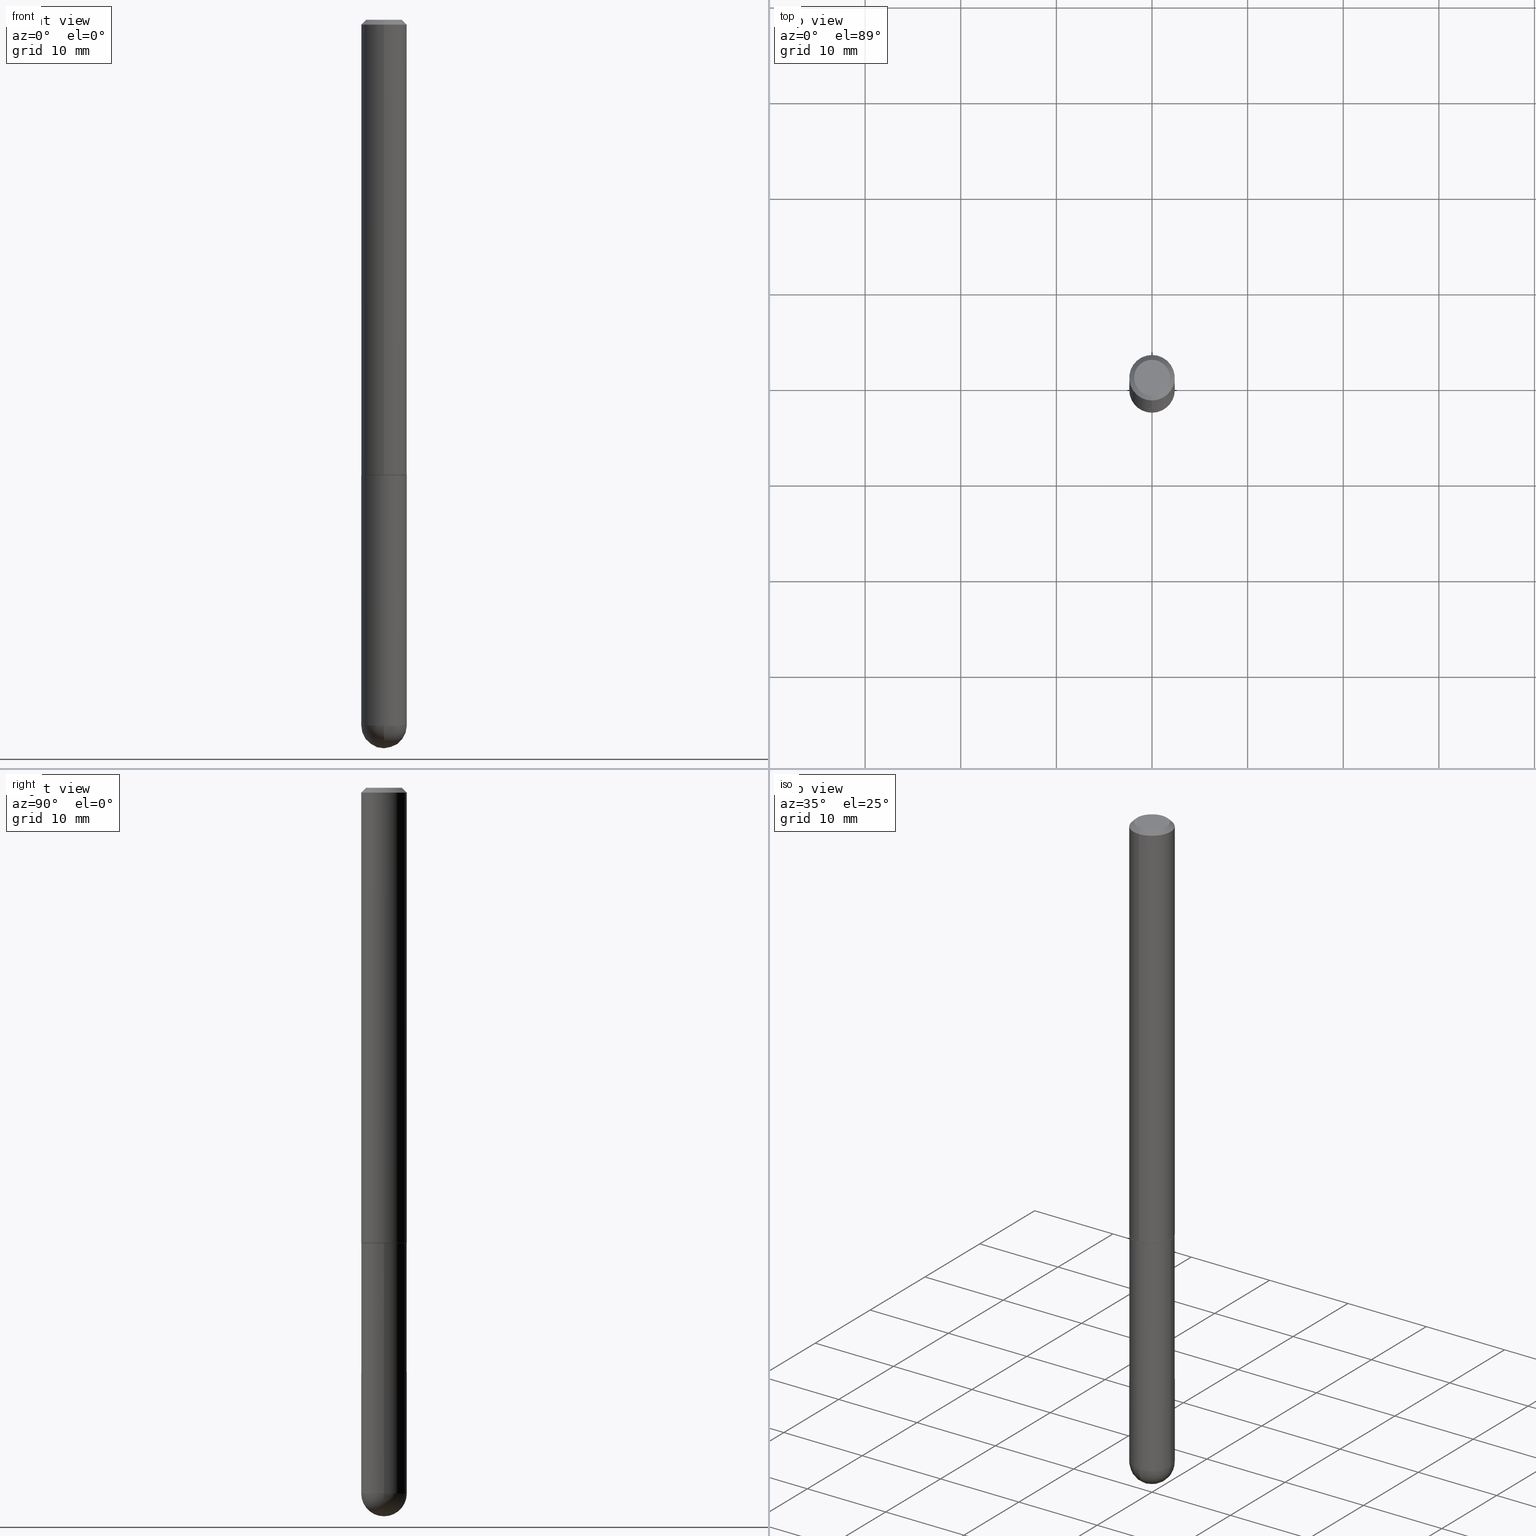
[diagram: canonical four-view strip — front | top / right | iso, engineering-drawing reading convention]
A machine part, canonical four-view strip (front | top / right | iso — engineering-drawing reading convention). The complete STEP part file that produces these views, byte-faithful:
ISO-10303-21;
HEADER;
FILE_DESCRIPTION (( 'STEP AP203' ),
    '1' );
FILE_NAME ('31989.STEP',
    '2024-02-21T17:30:06',
    ( '' ),
    ( '' ),
    'SwSTEP 2.0',
    'SolidWorks 2023',
    '' );
FILE_SCHEMA (( 'CONFIG_CONTROL_DESIGN' ));
ENDSEC;

DATA;
#1 = PERSON_AND_ORGANIZATION_ROLE ( 'design_supplier' ) ;
#2 = ADVANCED_FACE ( 'NONE', ( #400 ), #149, .T. ) ;
#3 = LENGTH_MEASURE_WITH_UNIT ( LENGTH_MEASURE( 0.02539999999999999897 ), #205 );
#4 = EDGE_LOOP ( 'NONE', ( #359, #80, #20, #229 ) ) ;
#5 = DIRECTION ( 'NONE',  ( 4.937700262164540942E-15, 0.7071067811865441310, -0.7071067811865509034 ) ) ;
#6 = ORIENTED_EDGE ( 'NONE', *, *, #130, .F. ) ;
#7 = MANIFOLD_SOLID_BREP ( 'Body-Move/Copy2[1]', #342 ) ;
#8 = DIRECTION ( 'NONE',  ( -2.444937418250420314E-29, 3.492242316610381935E-15, 1.000000000000000000 ) ) ;
#9 = CC_DESIGN_PERSON_AND_ORGANIZATION_ASSIGNMENT ( #90, #46, ( #234 ) ) ;
#10 = ORIENTED_EDGE ( 'NONE', *, *, #93, .T. ) ;
#11 = FACE_OUTER_BOUND ( 'NONE', #210, .T. ) ;
#12 = VERTEX_POINT ( 'NONE', #243 ) ;
#13 = DATE_AND_TIME ( #122, #165 ) ;
#14 = ORIENTED_EDGE ( 'NONE', *, *, #283, .T. ) ;
#15 = APPLICATION_PROTOCOL_DEFINITION ( 'international standard', 'config_control_design', 1994, #182 ) ;
#16 = FACE_OUTER_BOUND ( 'NONE', #286, .T. ) ;
#17 = AXIS2_PLACEMENT_3D ( 'NONE', #368, #153, #148 ) ;
#18 = CIRCLE ( 'NONE', #53, 0.09375000000000024980 ) ;
#19 = LINE ( 'NONE', #112, #249 ) ;
#20 = ORIENTED_EDGE ( 'NONE', *, *, #194, .F. ) ;
#21 = FACE_OUTER_BOUND ( 'NONE', #204, .T. ) ;
#22 = EDGE_CURVE ( 'NONE', #77, #136, #345, .T. ) ;
#23 = CIRCLE ( 'NONE', #382, 0.07375000000000025979 ) ;
#24 = CARTESIAN_POINT ( 'NONE',  ( 6.776023940061668108E-29, -1.062130000915294250E-14, -2.906250000000000000 ) ) ;
#25 = MECHANICAL_CONTEXT ( 'NONE', #182, 'mechanical' ) ;
#26 = COORDINATED_UNIVERSAL_TIME_OFFSET ( 5, 0, .BEHIND. ) ;
#27 = ADVANCED_FACE ( 'NONE', ( #58 ), #54, .T. ) ;
#28 = CARTESIAN_POINT ( 'NONE',  ( 4.277488671524006827E-45, -6.109778858146482464E-31, -1.749528899837831747E-16 ) ) ;
#29 = CALENDAR_DATE ( 2024, 21, 2 ) ;
#30 = PRODUCT_DEFINITION_FORMATION_WITH_SPECIFIED_SOURCE ( 'ANY', '', #181, .NOT_KNOWN. ) ;
#31 = CALENDAR_DATE ( 2024, 21, 2 ) ;
#32 = EDGE_CURVE ( 'NONE', #338, #239, #336, .T. ) ;
#33 = PERSON_AND_ORGANIZATION_ROLE ( 'creator' ) ;
#34 = DIRECTION ( 'NONE',  ( -6.982962677686266711E-15, -1.000000000000000000, 3.492242316610381935E-15 ) ) ;
#35 = VERTEX_POINT ( 'NONE', #305 ) ;
#36 = VECTOR ( 'NONE', #67, 39.37007874015748143 ) ;
#37 = SECURITY_CLASSIFICATION_LEVEL ( 'unclassified' ) ;
#38 = AXIS2_PLACEMENT_3D ( 'NONE', #71, #390, #43 ) ;
#39 = CARTESIAN_POINT ( 'NONE',  ( 4.581812721801287478E-29, -6.544462101327855902E-15, -1.874000000000000110 ) ) ;
#40 = EDGE_LOOP ( 'NONE', ( #193, #329 ) ) ;
#41 = ADVANCED_FACE ( 'NONE', ( #21 ), #272, .T. ) ;
#42 = ORIENTED_EDGE ( 'NONE', *, *, #312, .F. ) ;
#43 = DIRECTION ( 'NONE',  ( -6.982962677686266711E-15, -1.000000000000000000, 3.505871591869136121E-15 ) ) ;
#44 = ORIENTED_EDGE ( 'NONE', *, *, #365, .F. ) ;
#45 = APPROVAL_PERSON_ORGANIZATION ( #155, #215, #310 ) ;
#46 = PERSON_AND_ORGANIZATION_ROLE ( 'creator' ) ;
#47 = ORIENTED_EDGE ( 'NONE', *, *, #298, .F. ) ;
#48 = APPROVAL_DATE_TIME ( #57, #268 ) ;
#49 = DIRECTION ( 'NONE',  ( -2.444937418250420594E-29, 3.492242316610381935E-15, 1.000000000000000000 ) ) ;
#50 = CARTESIAN_POINT ( 'NONE',  ( 6.661338147750948117E-16, 0.09375000000000013878, -3.273977171822237748E-16 ) ) ;
#51 = VECTOR ( 'NONE', #49, 39.37007874015748143 ) ;
#52 = AXIS2_PLACEMENT_3D ( 'NONE', #124, #248, #156 ) ;
#53 = AXIS2_PLACEMENT_3D ( 'NONE', #39, #325, #228 ) ;
#54 = SPHERICAL_SURFACE ( 'NONE', #218, 0.09375000000000026368 ) ;
#55 = ADVANCED_FACE ( 'NONE', ( #16 ), #255, .T. ) ;
#56 = DIRECTION ( 'NONE',  ( -2.444937418250420594E-29, 3.492242316610381935E-15, 1.000000000000000000 ) ) ;
#57 = DATE_AND_TIME ( #187, #180 ) ;
#58 = FACE_OUTER_BOUND ( 'NONE', #103, .T. ) ;
#59 = AXIS2_PLACEMENT_3D ( 'NONE', #282, #221, #188 ) ;
#60 = DIRECTION ( 'NONE',  ( -2.445468806185136877E-29, 3.491481338843145188E-15, 1.000000000000000000 ) ) ;
#61 = APPLICATION_PROTOCOL_DEFINITION ( 'international standard', 'config_control_design', 1994, #356 ) ;
#62 = DIRECTION ( 'NONE',  ( -6.982962677686265922E-15, -1.000000000000000000, 2.945388672414299892E-15 ) ) ;
#63 = LINE ( 'NONE', #379, #207 ) ;
#64 = AXIS2_PLACEMENT_3D ( 'NONE', #381, #127, #94 ) ;
#65 = CC_DESIGN_APPROVAL ( #215, ( #30 ) ) ;
#66 = CC_DESIGN_PERSON_AND_ORGANIZATION_ASSIGNMENT ( #411, #1, ( #30 ) ) ;
#67 = DIRECTION ( 'NONE',  ( -4.851104656540957175E-15, -0.7071067811865490160, -0.7071067811865460184 ) ) ;
#68 = DATE_AND_TIME ( #29, #315 ) ;
#69 = PLANE ( 'NONE',  #106 ) ;
#70 = ORIENTED_EDGE ( 'NONE', *, *, #360, .F. ) ;
#71 = CARTESIAN_POINT ( 'NONE',  ( 4.889874836500844937E-31, -6.984484633220769491E-17, -0.02000000000000001776 ) ) ;
#72 = EDGE_LOOP ( 'NONE', ( #202, #297 ) ) ;
#73 = CONICAL_SURFACE ( 'NONE', #64, 0.09274999999999999911, 0.7853981633975336552 ) ;
#74 = EDGE_CURVE ( 'NONE', #239, #259, #270, .T. ) ;
#75 = VECTOR ( 'NONE', #197, 39.37007874015748143 ) ;
#76 = DIRECTION ( 'NONE',  ( 1.000000000000000000, -6.982962677686261189E-15, 0.000000000000000000 ) ) ;
#77 = VERTEX_POINT ( 'NONE', #364 ) ;
#78 = CARTESIAN_POINT ( 'NONE',  ( 0.000000000000000000, 0.000000000000000000, 0.000000000000000000 ) ) ;
#79 = ORIENTED_EDGE ( 'NONE', *, *, #166, .T. ) ;
#80 = ORIENTED_EDGE ( 'NONE', *, *, #111, .T. ) ;
#81 = AXIS2_PLACEMENT_3D ( 'NONE', #245, #56, #370 ) ;
#82 = CC_DESIGN_APPROVAL ( #268, ( #234 ) ) ;
#83 = COORDINATED_UNIVERSAL_TIME_OFFSET ( 5, 0, .BEHIND. ) ;
#84 = CARTESIAN_POINT ( 'NONE',  ( 0.000000000000000000, 0.000000000000000000, 0.000000000000000000 ) ) ;
#85 = LOCAL_TIME ( 12, 30, 6.000000000000000000, #409 ) ;
#86 = FACE_OUTER_BOUND ( 'NONE', #72, .T. ) ;
#87 = DATE_AND_TIME ( #371, #212 ) ;
#88 = DIRECTION ( 'NONE',  ( -6.982962677686265133E-15, -1.000000000000000000, 3.492242316610381541E-15 ) ) ;
#89 = CIRCLE ( 'NONE', #302, 0.09374999999999998612 ) ;
#90 = PERSON_AND_ORGANIZATION ( #183, #389 ) ;
#91 = FACE_OUTER_BOUND ( 'NONE', #386, .T. ) ;
#92 = DIRECTION ( 'NONE',  ( 6.982962677686266711E-15, 1.000000000000000000, -3.505871591869136121E-15 ) ) ;
#93 = EDGE_CURVE ( 'NONE', #144, #322, #293, .T. ) ;
#94 = DIRECTION ( 'NONE',  ( -6.982962677686265922E-15, -1.000000000000000000, 2.945388672414299892E-15 ) ) ;
#95 = ORIENTED_EDGE ( 'NONE', *, *, #298, .T. ) ;
#96 = DIRECTION ( 'NONE',  ( -2.444937418250420594E-29, 3.492242316610381935E-15, 1.000000000000000000 ) ) ;
#97 = ORIENTED_EDGE ( 'NONE', *, *, #32, .T. ) ;
#98 = CARTESIAN_POINT ( 'NONE',  ( 7.107143717975553234E-29, -1.014711764101289221E-14, -2.906250000000000000 ) ) ;
#99 = ADVANCED_FACE ( 'NONE', ( #86 ), #396, .F. ) ;
#100 = ORIENTED_EDGE ( 'NONE', *, *, #365, .T. ) ;
#101 = DIMENSIONAL_EXPONENTS ( 1.000000000000000000, 0.000000000000000000, 0.000000000000000000, 0.000000000000000000, 0.000000000000000000, 0.000000000000000000, 0.000000000000000000 ) ;
#102 = DIRECTION ( 'NONE',  ( 6.982962677686265133E-15, 1.000000000000000000, 0.000000000000000000 ) ) ;
#103 = EDGE_LOOP ( 'NONE', ( #70, #252, #304, #264 ) ) ;
#104 = CLOSED_SHELL ( 'NONE', ( #224, #378, #55, #189, #316, #171, #277, #247 ) ) ;
#105 = AXIS2_PLACEMENT_3D ( 'NONE', #147, #275, #330 ) ;
#106 = AXIS2_PLACEMENT_3D ( 'NONE', #139, #8, #327 ) ;
#107 = DIRECTION ( 'NONE',  ( 1.000000000000000000, -6.982962677686263555E-15, 0.000000000000000000 ) ) ;
#108 = ORIENTED_EDGE ( 'NONE', *, *, #372, .F. ) ;
#109 = CYLINDRICAL_SURFACE ( 'NONE', #334, 0.09375000000000013878 ) ;
#110 = ORIENTED_EDGE ( 'NONE', *, *, #177, .T. ) ;
#111 = EDGE_CURVE ( 'NONE', #259, #388, #113, .T. ) ;
#112 = CARTESIAN_POINT ( 'NONE',  ( -0.09374999999999998612, 6.661338147750938256E-16, -4.611501647113973295E-30 ) ) ;
#113 = LINE ( 'NONE', #50, #51 ) ;
#114 = CARTESIAN_POINT ( 'NONE',  ( -0.09375000000000001388, -7.680688760896801533E-15, -1.875000000000000000 ) ) ;
#115 = EDGE_CURVE ( 'NONE', #326, #136, #19, .T. ) ;
#116 = DIRECTION ( 'NONE',  ( -6.982962677686265133E-15, -1.000000000000000000, 3.492242316610381541E-15 ) ) ;
#117 =( NAMED_UNIT ( * ) PLANE_ANGLE_UNIT ( ) SI_UNIT ( $, .RADIAN. ) );
#118 = CIRCLE ( 'NONE', #173, 0.09375000000000004163 ) ;
#119 = AXIS2_PLACEMENT_3D ( 'NONE', #78, #96, #358 ) ;
#120 = DIRECTION ( 'NONE',  ( 1.000000000000000000, -6.982962677686263555E-15, 0.000000000000000000 ) ) ;
#121 = DIRECTION ( 'NONE',  ( 2.444937418250420594E-29, -3.492242316610381935E-15, -1.000000000000000000 ) ) ;
#122 = CALENDAR_DATE ( 2024, 21, 2 ) ;
#123 = CC_DESIGN_PERSON_AND_ORGANIZATION_ASSIGNMENT ( #279, #253, ( #263 ) ) ;
#124 = CARTESIAN_POINT ( 'NONE',  ( 5.149934974793638660E-16, 0.07375000000000025979, -3.450293158419081849E-16 ) ) ;
#125 = APPROVAL_STATUS ( 'not_yet_approved' ) ;
#126 = CONICAL_SURFACE ( 'NONE', #354, 0.09274999999999999911, 0.7853981633975336552 ) ;
#127 = DIRECTION ( 'NONE',  ( -2.444937418250420594E-29, 3.492242316610381935E-15, 1.000000000000000000 ) ) ;
#128 = VECTOR ( 'NONE', #361, 39.37007874015748143 ) ;
#129 = PERSON_AND_ORGANIZATION ( #183, #389 ) ;
#130 = EDGE_CURVE ( 'NONE', #236, #35, #23, .T. ) ;
#131 = DIRECTION ( 'NONE',  ( -1.000000000000000000, 7.105427357601001070E-15, -4.926315508542082329E-29 ) ) ;
#132 = VERTEX_POINT ( 'NONE', #363 ) ;
#133 = CARTESIAN_POINT ( 'NONE',  ( 6.546527510330881944E-16, 0.09374999999999997224, -0.02000000000000034736 ) ) ;
#134 = DATE_TIME_ROLE ( 'classification_date' ) ;
#135 = CARTESIAN_POINT ( 'NONE',  ( 7.107143717975553234E-29, -1.014711764101289221E-14, -2.906250000000000000 ) ) ;
#136 = VERTEX_POINT ( 'NONE', #114 ) ;
#137 = DIRECTION ( 'NONE',  ( -2.444937418250420594E-29, 3.492242316610381935E-15, 1.000000000000000000 ) ) ;
#138 = ORIENTED_EDGE ( 'NONE', *, *, #74, .F. ) ;
#139 = CARTESIAN_POINT ( 'NONE',  ( 4.584257659219538754E-29, -6.547954343644467410E-15, -1.875000000000000000 ) ) ;
#140 = ORIENTED_EDGE ( 'NONE', *, *, #115, .T. ) ;
#141 = AXIS2_PLACEMENT_3D ( 'NONE', #24, #395, #185 ) ;
#142 = AXIS2_PLACEMENT_3D ( 'NONE', #135, #161, #385 ) ;
#143 = LINE ( 'NONE', #412, #250 ) ;
#144 = VERTEX_POINT ( 'NONE', #402 ) ;
#145 = CC_DESIGN_PERSON_AND_ORGANIZATION_ASSIGNMENT ( #299, #33, ( #30 ) ) ;
#146 = EDGE_LOOP ( 'NONE', ( #332, #391, #138, #410 ) ) ;
#147 = CARTESIAN_POINT ( 'NONE',  ( 0.000000000000000000, 0.000000000000000000, 0.000000000000000000 ) ) ;
#148 = DIRECTION ( 'NONE',  ( 6.982962677686266711E-15, 1.000000000000000000, -3.505871591869136121E-15 ) ) ;
#149 = CYLINDRICAL_SURFACE ( 'NONE', #406, 0.09374999999999998612 ) ;
#150 = DIRECTION ( 'NONE',  ( -2.445468806185136877E-29, 3.491481338843145188E-15, 1.000000000000000000 ) ) ;
#151 = CARTESIAN_POINT ( 'NONE',  ( 7.107143717975553234E-29, -1.014711764101289221E-14, -2.906250000000000000 ) ) ;
#152 = APPROVAL_PERSON_ORGANIZATION ( #337, #268, #377 ) ;
#153 = DIRECTION ( 'NONE',  ( 2.444937418250420594E-29, -3.492242316610381935E-15, -1.000000000000000000 ) ) ;
#154 = CC_DESIGN_DATE_AND_TIME_ASSIGNMENT ( #87, #339, ( #234 ) ) ;
#155 = PERSON_AND_ORGANIZATION ( #183, #389 ) ;
#156 = DIRECTION ( 'NONE',  ( 6.982962677686265922E-15, 1.000000000000000000, -3.492242316610381935E-15 ) ) ;
#157 = AXIS2_PLACEMENT_3D ( 'NONE', #351, #285, #294 ) ;
#158 = CARTESIAN_POINT ( 'NONE',  ( 6.661338147751182803E-16, 0.09374999999999368561, -1.874000000000000332 ) ) ;
#159 = SHAPE_DEFINITION_REPRESENTATION ( #214, #195 ) ;
#160 = CARTESIAN_POINT ( 'NONE',  ( -6.431716872910807882E-16, -0.09375000000000011102, -0.01999999999999968817 ) ) ;
#161 = DIRECTION ( 'NONE',  ( -2.445468806185136597E-29, 3.491481338843145583E-15, 1.000000000000000000 ) ) ;
#162 = APPROVAL_DATE_TIME ( #68, #401 ) ;
#163 = AXIS2_PLACEMENT_3D ( 'NONE', #408, #121, #92 ) ;
#164 = EDGE_LOOP ( 'NONE', ( #108, #292, #97, #42 ) ) ;
#165 = LOCAL_TIME ( 12, 30, 6.000000000000000000, #26 ) ;
#166 = EDGE_CURVE ( 'NONE', #322, #77, #63, .T. ) ;
#167 = EDGE_LOOP ( 'NONE', ( #169, #394, #227, #260 ) ) ;
#168 = CARTESIAN_POINT ( 'NONE',  ( 4.585254011597131119E-29, -6.546527510330898707E-15, -1.875000000000000000 ) ) ;
#169 = ORIENTED_EDGE ( 'NONE', *, *, #111, .F. ) ;
#170 = CARTESIAN_POINT ( 'NONE',  ( -6.476697883553553415E-16, -0.09275000000000656331, -1.874999999999999778 ) ) ;
#171 = ADVANCED_FACE ( 'NONE', ( #186 ), #73, .T. ) ;
#172 = ORIENTED_EDGE ( 'NONE', *, *, #166, .F. ) ;
#173 = AXIS2_PLACEMENT_3D ( 'NONE', #223, #191, #311 ) ;
#174 = ORIENTED_EDGE ( 'NONE', *, *, #115, .F. ) ;
#175 = APPROVAL_DATE_TIME ( #13, #215 ) ;
#176 = ORIENTED_EDGE ( 'NONE', *, *, #240, .F. ) ;
#177 = EDGE_CURVE ( 'NONE', #236, #271, #340, .T. ) ;
#178 = DIRECTION ( 'NONE',  ( -2.445468806185136597E-29, 3.491481338843145583E-15, 1.000000000000000000 ) ) ;
#179 = CIRCLE ( 'NONE', #231, 0.07375000000000025979 ) ;
#180 = LOCAL_TIME ( 12, 30, 6.000000000000000000, #83 ) ;
#181 = PRODUCT ( '31989', '31989', '', ( #25 ) ) ;
#182 = APPLICATION_CONTEXT ( 'configuration controlled 3d designs of mechanical parts and assemblies' ) ;
#183 = PERSON ( 'UNSPECIFIED', 'UNSPECIFIED', 'UNSPECIFIED', ('UNSPECIFIED'), ('UNSPECIFIED'), ('UNSPECIFIED') ) ;
#184 = DIRECTION ( 'NONE',  ( 6.982962677686265133E-15, 1.000000000000000000, -5.827942386483744967E-15 ) ) ;
#185 = DIRECTION ( 'NONE',  ( 6.982962677686265133E-15, 1.000000000000000000, -5.827942386483744967E-15 ) ) ;
#186 = FACE_OUTER_BOUND ( 'NONE', #164, .T. ) ;
#187 = CALENDAR_DATE ( 2024, 21, 2 ) ;
#188 = DIRECTION ( 'NONE',  ( -6.982962677686265922E-15, -1.000000000000000000, 2.945388672414299892E-15 ) ) ;
#189 = ADVANCED_FACE ( 'NONE', ( #91 ), #375, .T. ) ;
#190 = DIRECTION ( 'NONE',  ( -6.982962677686265922E-15, -1.000000000000000000, 2.945388672414299892E-15 ) ) ;
#191 = DIRECTION ( 'NONE',  ( -2.444937418250420594E-29, 3.492242316610381935E-15, 1.000000000000000000 ) ) ;
#192 = CYLINDRICAL_SURFACE ( 'NONE', #119, 0.09375000000000013878 ) ;
#193 = ORIENTED_EDGE ( 'NONE', *, *, #244, .T. ) ;
#194 = EDGE_CURVE ( 'NONE', #271, #388, #118, .T. ) ;
#195 = ADVANCED_BREP_SHAPE_REPRESENTATION ( '31989', ( #7, #291, #105 ), #222 ) ;
#196 = APPROVAL_STATUS ( 'not_yet_approved' ) ;
#197 = DIRECTION ( 'NONE',  ( 5.024295867788490741E-15, 0.7071067811866103003, 0.7071067811864847341 ) ) ;
#198 = CIRCLE ( 'NONE', #211, 0.09375000000000026368 ) ;
#199 = ORIENTED_EDGE ( 'NONE', *, *, #22, .F. ) ;
#200 = AXIS2_PLACEMENT_3D ( 'NONE', #278, #405, #62 ) ;
#201 = FACE_OUTER_BOUND ( 'NONE', #4, .T. ) ;
#202 = ORIENTED_EDGE ( 'NONE', *, *, #22, .T. ) ;
#203 = DIRECTION ( 'NONE',  ( -2.445468806185136597E-29, 3.491481338843145583E-15, 1.000000000000000000 ) ) ;
#204 = EDGE_LOOP ( 'NONE', ( #176, #324, #47, #267 ) ) ;
#205 =( LENGTH_UNIT ( ) NAMED_UNIT ( * ) SI_UNIT ( $, .METRE. ) );
#206 = ORIENTED_EDGE ( 'NONE', *, *, #244, .F. ) ;
#207 = VECTOR ( 'NONE', #60, 39.37007874015748143 ) ;
#208 = APPROVAL_PERSON_ORGANIZATION ( #129, #401, #380 ) ;
#209 = DIRECTION ( 'NONE',  ( -1.000000000000000000, 6.982962677686265922E-15, -4.876176775795935793E-29 ) ) ;
#210 = EDGE_LOOP ( 'NONE', ( #362, #352 ) ) ;
#211 = AXIS2_PLACEMENT_3D ( 'NONE', #403, #131, #313 ) ;
#212 = LOCAL_TIME ( 12, 30, 6.000000000000000000, #220 ) ;
#213 = DIRECTION ( 'NONE',  ( -1.000000000000000000, 6.982962677686265133E-15, -4.883557194083112901E-29 ) ) ;
#214 = PRODUCT_DEFINITION_SHAPE ( 'NONE', 'NONE',  #234 ) ;
#215 = APPROVAL ( #296, 'UNSPECIFIED' ) ;
#216 = CARTESIAN_POINT ( 'NONE',  ( 4.585254011597131119E-29, -6.546527510330898707E-15, -1.875000000000000000 ) ) ;
#217 = PLANE ( 'NONE',  #52 ) ;
#218 = AXIS2_PLACEMENT_3D ( 'NONE', #301, #213, #184 ) ;
#219 = EDGE_CURVE ( 'NONE', #338, #266, #367, .T. ) ;
#220 = COORDINATED_UNIVERSAL_TIME_OFFSET ( 5, 0, .BEHIND. ) ;
#221 = DIRECTION ( 'NONE',  ( -2.444937418250420594E-29, 3.492242316610381935E-15, 1.000000000000000000 ) ) ;
#222 =( GEOMETRIC_REPRESENTATION_CONTEXT ( 3 ) GLOBAL_UNCERTAINTY_ASSIGNED_CONTEXT ( ( #226 ) ) GLOBAL_UNIT_ASSIGNED_CONTEXT ( ( #321, #117, #306 ) ) REPRESENTATION_CONTEXT ( 'NONE', 'WORKASPACE' ) );
#223 = CARTESIAN_POINT ( 'NONE',  ( 4.889874836500844937E-31, -6.984484633220769491E-17, -0.02000000000000001776 ) ) ;
#224 = ADVANCED_FACE ( 'NONE', ( #347 ), #126, .T. ) ;
#225 = FACE_OUTER_BOUND ( 'NONE', #295, .T. ) ;
#226 = UNCERTAINTY_MEASURE_WITH_UNIT (LENGTH_MEASURE( 1.000000000000000082E-05 ), #321, 'distance_accuracy_value', 'NONE');
#227 = ORIENTED_EDGE ( 'NONE', *, *, #404, .T. ) ;
#228 = DIRECTION ( 'NONE',  ( -6.982962677686265133E-15, -1.000000000000000000, 2.913971193241872878E-15 ) ) ;
#229 = ORIENTED_EDGE ( 'NONE', *, *, #404, .F. ) ;
#230 = DIRECTION ( 'NONE',  ( 1.000000000000000000, -6.982962677686263555E-15, 0.000000000000000000 ) ) ;
#231 = AXIS2_PLACEMENT_3D ( 'NONE', #28, #373, #88 ) ;
#232 = ORIENTED_EDGE ( 'NONE', *, *, #194, .T. ) ;
#233 = AXIS2_PLACEMENT_3D ( 'NONE', #168, #284, #76 ) ;
#234 = PRODUCT_DEFINITION ( 'UNKNOWN', '', #30, #384 ) ;
#235 = CARTESIAN_POINT ( 'NONE',  ( -6.431716872910807882E-16, -0.09375000000000011102, -0.01999999999999968817 ) ) ;
#236 = VERTEX_POINT ( 'NONE', #246 ) ;
#237 = CARTESIAN_POINT ( 'NONE',  ( 0.000000000000000000, 0.000000000000000000, 0.000000000000000000 ) ) ;
#238 = ORIENTED_EDGE ( 'NONE', *, *, #303, .T. ) ;
#239 = VERTEX_POINT ( 'NONE', #317 ) ;
#240 = EDGE_CURVE ( 'NONE', #132, #144, #198, .T. ) ;
#241 = CARTESIAN_POINT ( 'NONE',  ( 4.277488671524006827E-45, -6.109778858146482464E-31, -1.749528899837831747E-16 ) ) ;
#242 = CARTESIAN_POINT ( 'NONE',  ( 6.546527510331333567E-16, 0.09374999999999346356, -1.875000000000000444 ) ) ;
#243 = CARTESIAN_POINT ( 'NONE',  ( 6.546527510331577127E-16, 0.09374999999998974431, -2.906250000000000888 ) ) ;
#244 = EDGE_CURVE ( 'NONE', #35, #236, #179, .T. ) ;
#245 = CARTESIAN_POINT ( 'NONE',  ( 4.581812721801287478E-29, -6.544462101327855902E-15, -1.874000000000000110 ) ) ;
#246 = CARTESIAN_POINT ( 'NONE',  ( -5.745667073133664428E-16, -0.07375000000000025979, 8.259998086623342292E-17 ) ) ;
#247 = ADVANCED_FACE ( 'NONE', ( #343 ), #217, .F. ) ;
#248 = DIRECTION ( 'NONE',  ( 2.444937418250420314E-29, -3.492242316610381935E-15, -1.000000000000000000 ) ) ;
#249 = VECTOR ( 'NONE', #150, 39.37007874015748143 ) ;
#250 = VECTOR ( 'NONE', #5, 39.37007874015748143 ) ;
#251 = DATE_AND_TIME ( #31, #85 ) ;
#252 = ORIENTED_EDGE ( 'NONE', *, *, #240, .T. ) ;
#253 = PERSON_AND_ORGANIZATION_ROLE ( 'classification_officer' ) ;
#254 = EDGE_CURVE ( 'NONE', #266, #338, #261, .T. ) ;
#255 = CONICAL_SURFACE ( 'NONE', #17, 0.09375000000000004163, 0.7853981633974469467 ) ;
#256 = CIRCLE ( 'NONE', #38, 0.09375000000000004163 ) ;
#257 = CARTESIAN_POINT ( 'NONE',  ( -6.546527510330884902E-16, -0.09375000000000013878, 3.273977171822237748E-16 ) ) ;
#258 = CARTESIAN_POINT ( 'NONE',  ( 7.107143717975553234E-29, -1.014711764101289221E-14, -2.906250000000000000 ) ) ;
#259 = VERTEX_POINT ( 'NONE', #158 ) ;
#260 = ORIENTED_EDGE ( 'NONE', *, *, #320, .F. ) ;
#261 = CIRCLE ( 'NONE', #200, 0.09274999999999999911 ) ;
#262 = CARTESIAN_POINT ( 'NONE',  ( 6.776023940061668108E-29, -1.062130000915294250E-14, -2.906250000000000000 ) ) ;
#263 = SECURITY_CLASSIFICATION ( '', '', #37 ) ;
#264 = ORIENTED_EDGE ( 'NONE', *, *, #283, .F. ) ;
#265 = DIRECTION ( 'NONE',  ( 1.000000000000000000, -6.982962677686265922E-15, 4.883557194083112340E-29 ) ) ;
#266 = VERTEX_POINT ( 'NONE', #281 ) ;
#267 = ORIENTED_EDGE ( 'NONE', *, *, #93, .F. ) ;
#268 = APPROVAL ( #125, 'UNSPECIFIED' ) ;
#269 = DIRECTION ( 'NONE',  ( 1.000000000000000000, -6.982962677686266711E-15, 4.876176775795935793E-29 ) ) ;
#270 = CIRCLE ( 'NONE', #81, 0.09375000000000024980 ) ;
#271 = VERTEX_POINT ( 'NONE', #235 ) ;
#272 = SPHERICAL_SURFACE ( 'NONE', #141, 0.09375000000000026368 ) ;
#273 = DIRECTION ( 'NONE',  ( -2.445468806185136597E-29, 3.491481338843145583E-15, 1.000000000000000000 ) ) ;
#274 = AXIS2_PLACEMENT_3D ( 'NONE', #151, #273, #120 ) ;
#275 = DIRECTION ( 'NONE',  ( 0.000000000000000000, 0.000000000000000000, 1.000000000000000000 ) ) ;
#276 = CARTESIAN_POINT ( 'NONE',  ( 4.584257659219538754E-29, -6.547954343644467410E-15, -1.875000000000000000 ) ) ;
#277 = ADVANCED_FACE ( 'NONE', ( #11 ), #69, .F. ) ;
#278 = CARTESIAN_POINT ( 'NONE',  ( 4.584257659219538754E-29, -6.547954343644467410E-15, -1.875000000000000000 ) ) ;
#279 = PERSON_AND_ORGANIZATION ( #183, #389 ) ;
#280 = CIRCLE ( 'NONE', #233, 0.09375000000000001388 ) ;
#281 = CARTESIAN_POINT ( 'NONE',  ( 6.625811010963399630E-16, 0.09274999999999344880, -1.875000000000000444 ) ) ;
#282 = CARTESIAN_POINT ( 'NONE',  ( 4.584257659219538754E-29, -6.547954343644467410E-15, -1.875000000000000000 ) ) ;
#283 = EDGE_CURVE ( 'NONE', #12, #326, #383, .T. ) ;
#284 = DIRECTION ( 'NONE',  ( -2.445468806185136597E-29, 3.491481338843145583E-15, 1.000000000000000000 ) ) ;
#285 = DIRECTION ( 'NONE',  ( -2.445468806185136597E-29, 3.491481338843145583E-15, 1.000000000000000000 ) ) ;
#286 = EDGE_LOOP ( 'NONE', ( #6, #110, #232, #44 ) ) ;
#287 = CC_DESIGN_DATE_AND_TIME_ASSIGNMENT ( #251, #134, ( #263 ) ) ;
#288 = DIRECTION ( 'NONE',  ( -2.445468806185136597E-29, 3.491481338843145583E-15, 1.000000000000000000 ) ) ;
#289 = ORIENTED_EDGE ( 'NONE', *, *, #353, .F. ) ;
#290 = CYLINDRICAL_SURFACE ( 'NONE', #157, 0.09374999999999998612 ) ;
#291 = MANIFOLD_SOLID_BREP ( 'Body-Move/Copy2[2]', #104 ) ;
#292 = ORIENTED_EDGE ( 'NONE', *, *, #254, .T. ) ;
#293 = CIRCLE ( 'NONE', #274, 0.09374999999999998612 ) ;
#294 = DIRECTION ( 'NONE',  ( 1.000000000000000000, -6.982962677686266711E-15, 4.876176775795935793E-29 ) ) ;
#295 = EDGE_LOOP ( 'NONE', ( #14, #140, #199, #172, #95 ) ) ;
#296 = APPROVAL_STATUS ( 'not_yet_approved' ) ;
#297 = ORIENTED_EDGE ( 'NONE', *, *, #353, .T. ) ;
#298 = EDGE_CURVE ( 'NONE', #322, #12, #376, .T. ) ;
#299 = PERSON_AND_ORGANIZATION ( #183, #389 ) ;
#300 = DIRECTION ( 'NONE',  ( -4.937700262164969294E-15, -0.7071067811866054154, 0.7071067811864896191 ) ) ;
#301 = CARTESIAN_POINT ( 'NONE',  ( 6.776023940061668108E-29, -1.062130000915294250E-14, -2.906250000000000000 ) ) ;
#302 = AXIS2_PLACEMENT_3D ( 'NONE', #258, #288, #107 ) ;
#303 = EDGE_CURVE ( 'NONE', #326, #144, #89, .T. ) ;
#304 = ORIENTED_EDGE ( 'NONE', *, *, #303, .F. ) ;
#305 = CARTESIAN_POINT ( 'NONE',  ( 5.848231242562259809E-16, 0.07375000000000025979, -4.325057608337997229E-16 ) ) ;
#306 =( NAMED_UNIT ( * ) SI_UNIT ( $, .STERADIAN. ) SOLID_ANGLE_UNIT ( ) );
#307 = DIRECTION ( 'NONE',  ( 1.000000000000000000, -6.982962677686261189E-15, 0.000000000000000000 ) ) ;
#308 = AXIS2_PLACEMENT_3D ( 'NONE', #242, #397, #209 ) ;
#309 = CC_DESIGN_SECURITY_CLASSIFICATION ( #263, ( #30 ) ) ;
#310 = APPROVAL_ROLE ( '' ) ;
#311 = DIRECTION ( 'NONE',  ( -6.982962677686266711E-15, -1.000000000000000000, 3.505871591869136121E-15 ) ) ;
#312 = EDGE_CURVE ( 'NONE', #259, #239, #18, .T. ) ;
#313 = DIRECTION ( 'NONE',  ( -7.105427357601001070E-15, -1.000000000000000000, 0.000000000000000000 ) ) ;
#314 = AXIS2_PLACEMENT_3D ( 'NONE', #216, #178, #307 ) ;
#315 = LOCAL_TIME ( 12, 30, 6.000000000000000000, #348 ) ;
#316 = ADVANCED_FACE ( 'NONE', ( #355 ), #192, .T. ) ;
#317 = CARTESIAN_POINT ( 'NONE',  ( -6.546527510330432293E-16, -0.09375000000000678624, -1.873999999999999666 ) ) ;
#318 = CARTESIAN_POINT ( 'NONE',  ( 0.09374999999999998612, -9.001475326704983750E-15, -2.906250000000000000 ) ) ;
#319 = ORIENTED_EDGE ( 'NONE', *, *, #320, .T. ) ;
#320 = EDGE_CURVE ( 'NONE', #388, #271, #256, .T. ) ;
#321 =( CONVERSION_BASED_UNIT ( 'INCH', #3 ) LENGTH_UNIT ( ) NAMED_UNIT ( #101 ) );
#322 = VERTEX_POINT ( 'NONE', #318 ) ;
#323 = LINE ( 'NONE', #257, #128 ) ;
#324 = ORIENTED_EDGE ( 'NONE', *, *, #360, .T. ) ;
#325 = DIRECTION ( 'NONE',  ( -2.444937418250420594E-29, 3.492242316610381935E-15, 1.000000000000000000 ) ) ;
#326 = VERTEX_POINT ( 'NONE', #387 ) ;
#327 = DIRECTION ( 'NONE',  ( -6.982962677686265922E-15, -1.000000000000000000, 3.492242316610381935E-15 ) ) ;
#328 = PRODUCT_RELATED_PRODUCT_CATEGORY ( 'detail', '', ( #181 ) ) ;
#329 = ORIENTED_EDGE ( 'NONE', *, *, #130, .T. ) ;
#330 = DIRECTION ( 'NONE',  ( 1.000000000000000000, 0.000000000000000000, 0.000000000000000000 ) ) ;
#331 = CARTESIAN_POINT ( 'NONE',  ( -6.476697883553553415E-16, -0.09275000000000656331, -1.874999999999999778 ) ) ;
#332 = ORIENTED_EDGE ( 'NONE', *, *, #219, .T. ) ;
#333 = VECTOR ( 'NONE', #300, 39.37007874015748143 ) ;
#334 = AXIS2_PLACEMENT_3D ( 'NONE', #237, #137, #34 ) ;
#335 = CIRCLE ( 'NONE', #346, 0.09375000000000026368 ) ;
#336 = LINE ( 'NONE', #331, #333 ) ;
#337 = PERSON_AND_ORGANIZATION ( #183, #389 ) ;
#338 = VERTEX_POINT ( 'NONE', #170 ) ;
#339 = DATE_TIME_ROLE ( 'creation_date' ) ;
#340 = LINE ( 'NONE', #160, #36 ) ;
#341 = ADVANCED_FACE ( 'NONE', ( #225 ), #290, .T. ) ;
#342 = CLOSED_SHELL ( 'NONE', ( #341, #27, #41, #99, #2 ) ) ;
#343 = FACE_OUTER_BOUND ( 'NONE', #40, .T. ) ;
#344 = DIRECTION ( 'NONE',  ( -2.444937418250420594E-29, 3.492242316610381935E-15, 1.000000000000000000 ) ) ;
#345 = CIRCLE ( 'NONE', #314, 0.09375000000000001388 ) ;
#346 = AXIS2_PLACEMENT_3D ( 'NONE', #262, #265, #102 ) ;
#347 = FACE_OUTER_BOUND ( 'NONE', #146, .T. ) ;
#348 = COORDINATED_UNIVERSAL_TIME_OFFSET ( 5, 0, .BEHIND. ) ;
#349 = LINE ( 'NONE', #393, #75 ) ;
#350 = ORIENTED_EDGE ( 'NONE', *, *, #177, .F. ) ;
#351 = CARTESIAN_POINT ( 'NONE',  ( 0.000000000000000000, 0.000000000000000000, 0.000000000000000000 ) ) ;
#352 = ORIENTED_EDGE ( 'NONE', *, *, #254, .F. ) ;
#353 = EDGE_CURVE ( 'NONE', #136, #77, #280, .T. ) ;
#354 = AXIS2_PLACEMENT_3D ( 'NONE', #276, #344, #190 ) ;
#355 = FACE_OUTER_BOUND ( 'NONE', #167, .T. ) ;
#356 = APPLICATION_CONTEXT ( 'configuration controlled 3d designs of mechanical parts and assemblies' ) ;
#357 = EDGE_LOOP ( 'NONE', ( #174, #238, #10, #79, #289 ) ) ;
#358 = DIRECTION ( 'NONE',  ( -6.982962677686266711E-15, -1.000000000000000000, 3.492242316610381935E-15 ) ) ;
#359 = ORIENTED_EDGE ( 'NONE', *, *, #74, .T. ) ;
#360 = EDGE_CURVE ( 'NONE', #132, #12, #335, .T. ) ;
#361 = DIRECTION ( 'NONE',  ( -2.444937418250420594E-29, 3.492242316610381935E-15, 1.000000000000000000 ) ) ;
#362 = ORIENTED_EDGE ( 'NONE', *, *, #219, .F. ) ;
#363 = CARTESIAN_POINT ( 'NONE',  ( 7.009295232622052523E-29, -1.094288585279848383E-14, -3.000000000000000444 ) ) ;
#364 = CARTESIAN_POINT ( 'NONE',  ( 0.09375000000000001388, -7.201180261363985422E-15, -1.875000000000000000 ) ) ;
#365 = EDGE_CURVE ( 'NONE', #35, #388, #143, .T. ) ;
#366 = DIRECTION ( 'NONE',  ( -2.445468806185136597E-29, 3.491481338843145583E-15, 1.000000000000000000 ) ) ;
#367 = CIRCLE ( 'NONE', #59, 0.09274999999999999911 ) ;
#368 = CARTESIAN_POINT ( 'NONE',  ( 4.889874836500844937E-31, -6.984484633220769491E-17, -0.02000000000000001776 ) ) ;
#369 = CC_DESIGN_APPROVAL ( #401, ( #263 ) ) ;
#370 = DIRECTION ( 'NONE',  ( -6.982962677686265133E-15, -1.000000000000000000, 2.913971193241872878E-15 ) ) ;
#371 = CALENDAR_DATE ( 2024, 21, 2 ) ;
#372 = EDGE_CURVE ( 'NONE', #266, #259, #349, .T. ) ;
#373 = DIRECTION ( 'NONE',  ( -2.444937418250420594E-29, 3.492242316610381935E-15, 1.000000000000000000 ) ) ;
#374 = PERSON_AND_ORGANIZATION ( #183, #389 ) ;
#375 = CONICAL_SURFACE ( 'NONE', #163, 0.09375000000000004163, 0.7853981633974469467 ) ;
#376 = CIRCLE ( 'NONE', #407, 0.09374999999999998612 ) ;
#377 = APPROVAL_ROLE ( '' ) ;
#378 = ADVANCED_FACE ( 'NONE', ( #201 ), #109, .T. ) ;
#379 = CARTESIAN_POINT ( 'NONE',  ( 0.09374999999999998612, -6.546527510330874055E-16, 4.571415727308689105E-30 ) ) ;
#380 = APPROVAL_ROLE ( '' ) ;
#381 = CARTESIAN_POINT ( 'NONE',  ( 4.584257659219538754E-29, -6.547954343644467410E-15, -1.875000000000000000 ) ) ;
#382 = AXIS2_PLACEMENT_3D ( 'NONE', #241, #398, #116 ) ;
#383 = CIRCLE ( 'NONE', #142, 0.09374999999999998612 ) ;
#384 = DESIGN_CONTEXT ( 'detailed design', #356, 'design' ) ;
#385 = DIRECTION ( 'NONE',  ( 1.000000000000000000, -6.982962677686263555E-15, 0.000000000000000000 ) ) ;
#386 = EDGE_LOOP ( 'NONE', ( #350, #206, #100, #319 ) ) ;
#387 = CARTESIAN_POINT ( 'NONE',  ( -0.09374999999999998612, -7.680688760896803110E-15, -2.906250000000000000 ) ) ;
#388 = VERTEX_POINT ( 'NONE', #133 ) ;
#389 = ORGANIZATION ( 'UNSPECIFIED', 'UNSPECIFIED', '' ) ;
#390 = DIRECTION ( 'NONE',  ( -2.444937418250420594E-29, 3.492242316610381935E-15, 1.000000000000000000 ) ) ;
#391 = ORIENTED_EDGE ( 'NONE', *, *, #372, .T. ) ;
#392 = CC_DESIGN_PERSON_AND_ORGANIZATION_ASSIGNMENT ( #374, #399, ( #181 ) ) ;
#393 = CARTESIAN_POINT ( 'NONE',  ( 6.590283874175386700E-16, 0.09274999999999344880, -1.875000000000000444 ) ) ;
#394 = ORIENTED_EDGE ( 'NONE', *, *, #312, .T. ) ;
#395 = DIRECTION ( 'NONE',  ( -1.000000000000000000, 6.982962677686265133E-15, -4.883557194083112901E-29 ) ) ;
#396 = PLANE ( 'NONE',  #308 ) ;
#397 = DIRECTION ( 'NONE',  ( 2.438088387897960049E-29, -3.491481338843145188E-15, -1.000000000000000000 ) ) ;
#398 = DIRECTION ( 'NONE',  ( -2.444937418250420594E-29, 3.492242316610381935E-15, 1.000000000000000000 ) ) ;
#399 = PERSON_AND_ORGANIZATION_ROLE ( 'design_owner' ) ;
#400 = FACE_OUTER_BOUND ( 'NONE', #357, .T. ) ;
#401 = APPROVAL ( #196, 'UNSPECIFIED' ) ;
#402 = CARTESIAN_POINT ( 'NONE',  ( -6.661338147750251947E-16, -0.09375000000001050549, -2.906249999999999556 ) ) ;
#403 = CARTESIAN_POINT ( 'NONE',  ( 6.776023940061668108E-29, -1.062130000915294250E-14, -2.906250000000000000 ) ) ;
#404 = EDGE_CURVE ( 'NONE', #239, #271, #323, .T. ) ;
#405 = DIRECTION ( 'NONE',  ( -2.444937418250420594E-29, 3.492242316610381935E-15, 1.000000000000000000 ) ) ;
#406 = AXIS2_PLACEMENT_3D ( 'NONE', #84, #366, #269 ) ;
#407 = AXIS2_PLACEMENT_3D ( 'NONE', #98, #203, #230 ) ;
#408 = CARTESIAN_POINT ( 'NONE',  ( 4.889874836500844937E-31, -6.984484633220769491E-17, -0.02000000000000001776 ) ) ;
#409 = COORDINATED_UNIVERSAL_TIME_OFFSET ( 5, 0, .BEHIND. ) ;
#410 = ORIENTED_EDGE ( 'NONE', *, *, #32, .F. ) ;
#411 = PERSON_AND_ORGANIZATION ( #183, #389 ) ;
#412 = CARTESIAN_POINT ( 'NONE',  ( 6.546527510330881944E-16, 0.09374999999999997224, -0.02000000000000034736 ) ) ;
ENDSEC;
END-ISO-10303-21;
